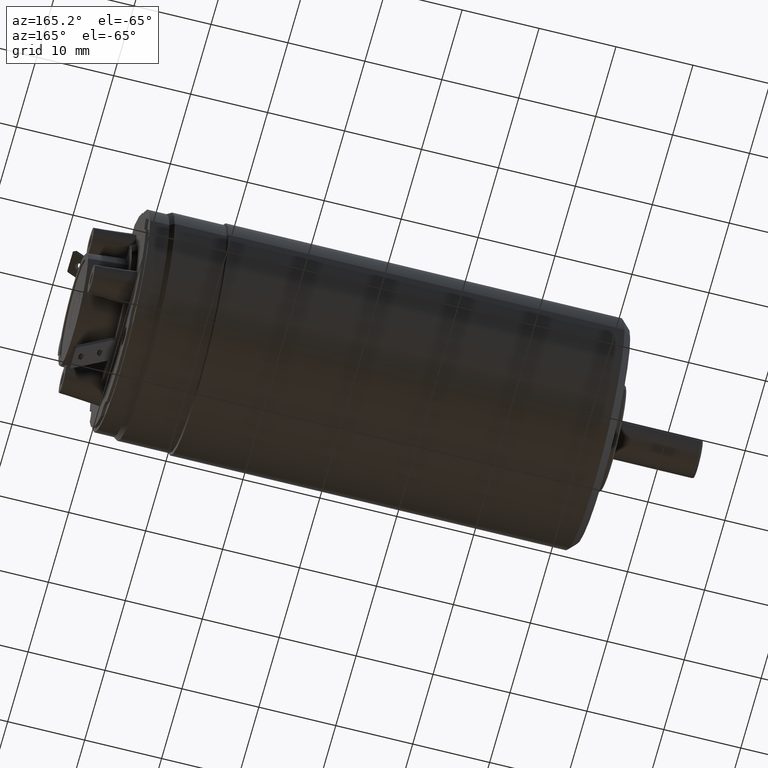
[diagram: clean part render]
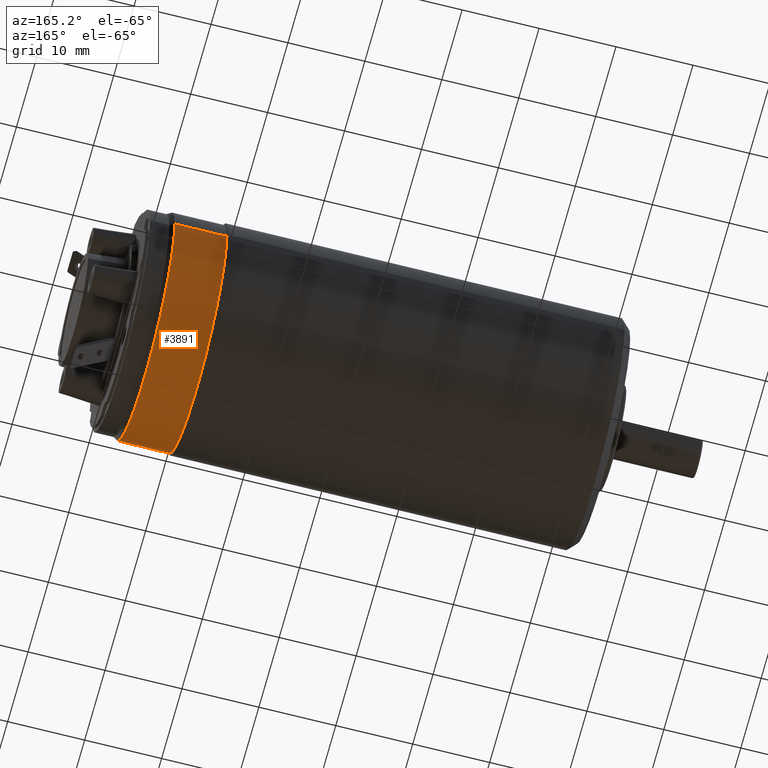
[diagram: same view with one face highlighted and labeled with its STEP entity id]
A machine part, auxiliary view. The second image highlights one B-rep face of the part: STEP entity #3891.
In plain terms, the highlighted cylindrical surface (partial cylindrical patch) has radius 14.75 mm, axis along (-1, 0, 0).
Its self-contained STEP definition (entity closure, byte-faithful):
#1075=DIRECTION('',(-1.E0,0.E0,0.E0));
#1076=VECTOR('',#1075,6.749444650053E0);
#1077=CARTESIAN_POINT('',(5.393782217351E0,1.475E1,0.E0));
#1078=LINE('',#1077,#1076);
#1084=DIRECTION('',(-1.E0,0.E0,0.E0));
#1085=VECTOR('',#1084,6.749444650053E0);
#1086=CARTESIAN_POINT('',(5.393782217351E0,-1.475E1,0.E0));
#1087=LINE('',#1086,#1085);
#1088=CARTESIAN_POINT('',(5.393782217351E0,0.E0,0.E0));
#1089=DIRECTION('',(-1.E0,0.E0,0.E0));
#1090=DIRECTION('',(0.E0,1.E0,0.E0));
#1091=AXIS2_PLACEMENT_3D('',#1088,#1089,#1090);
#1093=CARTESIAN_POINT('',(-1.355662432703E0,0.E0,0.E0));
#1094=DIRECTION('',(-1.E0,0.E0,0.E0));
#1095=DIRECTION('',(0.E0,1.E0,0.E0));
#1096=AXIS2_PLACEMENT_3D('',#1093,#1094,#1095);
#2314=CARTESIAN_POINT('',(5.393782217351E0,1.475E1,0.E0));
#2315=VERTEX_POINT('',#2314);
#2316=CARTESIAN_POINT('',(-1.355662432703E0,1.475E1,0.E0));
#2317=VERTEX_POINT('',#2316);
#2328=CARTESIAN_POINT('',(5.393782217351E0,-1.475E1,0.E0));
#2329=VERTEX_POINT('',#2328);
#2330=CARTESIAN_POINT('',(-1.355662432703E0,-1.475E1,0.E0));
#2331=VERTEX_POINT('',#2330);
#3879=CARTESIAN_POINT('',(1.1625E1,0.E0,0.E0));
#3880=DIRECTION('',(-1.E0,0.E0,0.E0));
#3881=DIRECTION('',(0.E0,1.E0,0.E0));
#3882=AXIS2_PLACEMENT_3D('',#3879,#3880,#3881);
#3883=CYLINDRICAL_SURFACE('',#3882,1.475E1);
#3884=ORIENTED_EDGE('',*,*,#3869,.T.);
#3886=ORIENTED_EDGE('',*,*,#3885,.T.);
#3887=ORIENTED_EDGE('',*,*,#3872,.F.);
#3888=ORIENTED_EDGE('',*,*,#3843,.F.);
#3889=EDGE_LOOP('',(#3884,#3886,#3887,#3888));
#3890=FACE_OUTER_BOUND('',#3889,.F.);
#3891=ADVANCED_FACE('',(#3890),#3883,.T.);
#1092=CIRCLE('',#1091,1.475E1);
#1097=CIRCLE('',#1096,1.475E1);
#3843=EDGE_CURVE('',#2315,#2329,#1092,.T.);
#3869=EDGE_CURVE('',#2315,#2317,#1078,.T.);
#3872=EDGE_CURVE('',#2329,#2331,#1087,.T.);
#3885=EDGE_CURVE('',#2317,#2331,#1097,.T.);